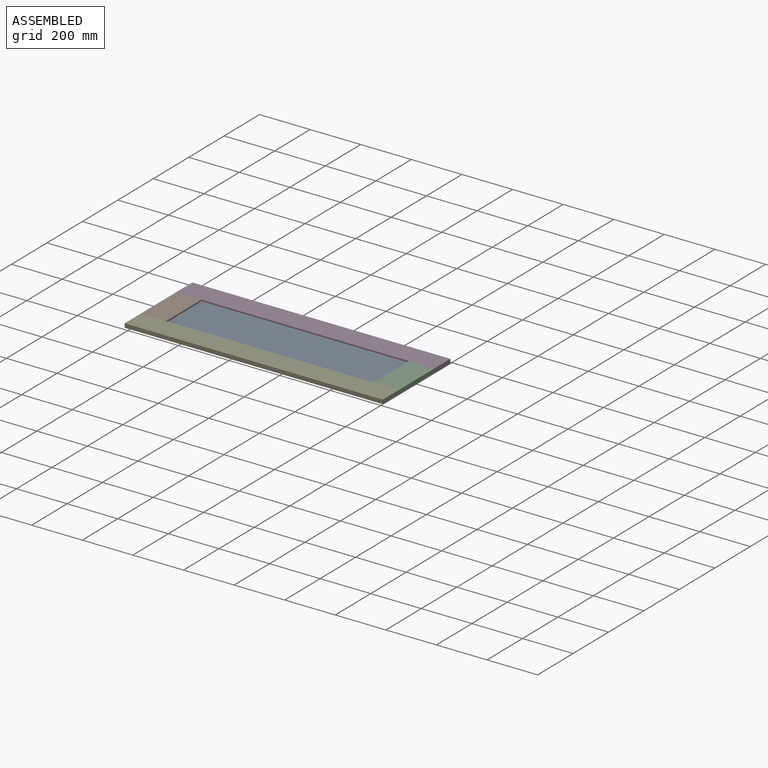
[diagram: assembled view]
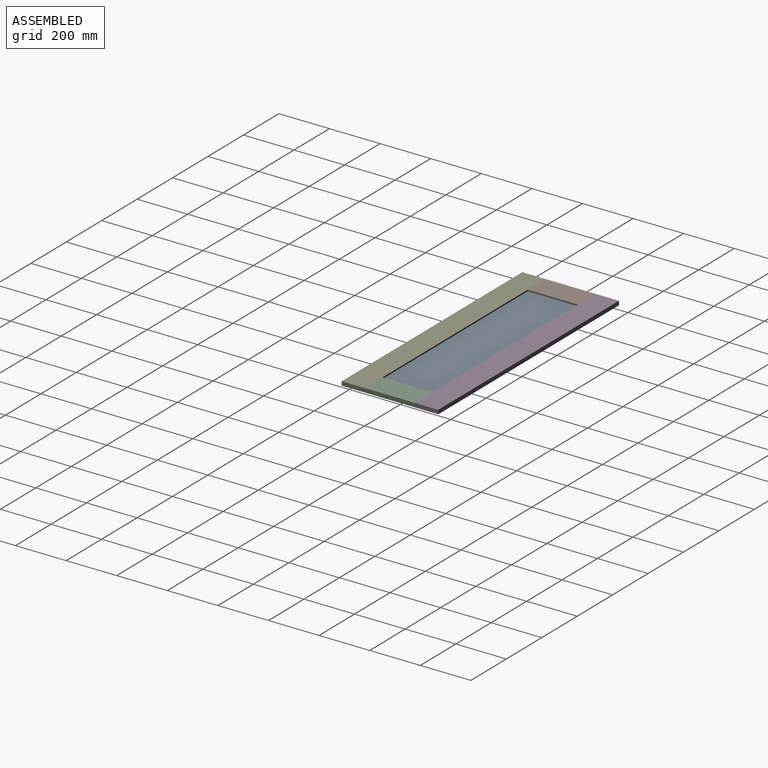
[diagram: assembled view, second angle]
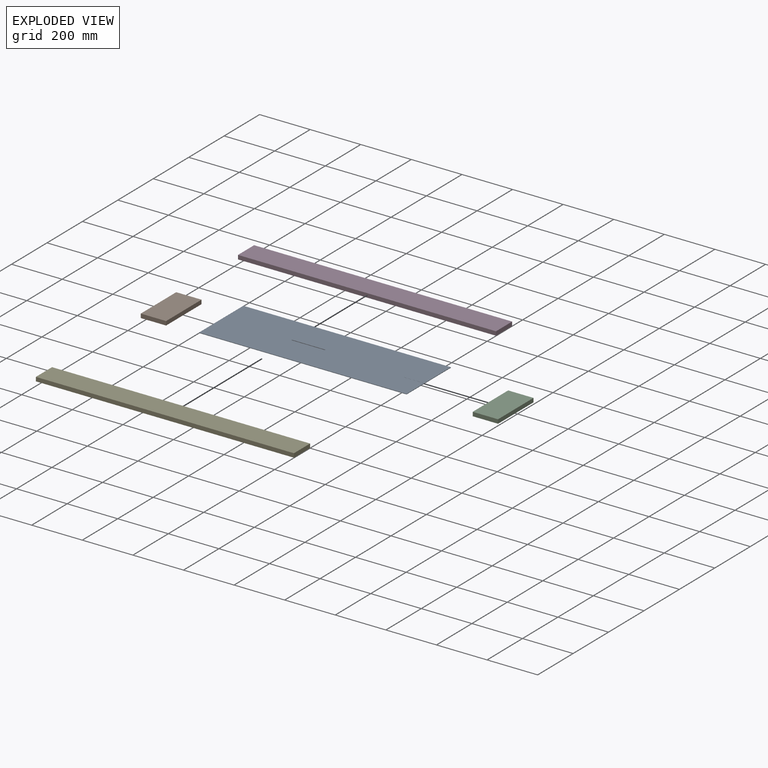
[diagram: exploded view]
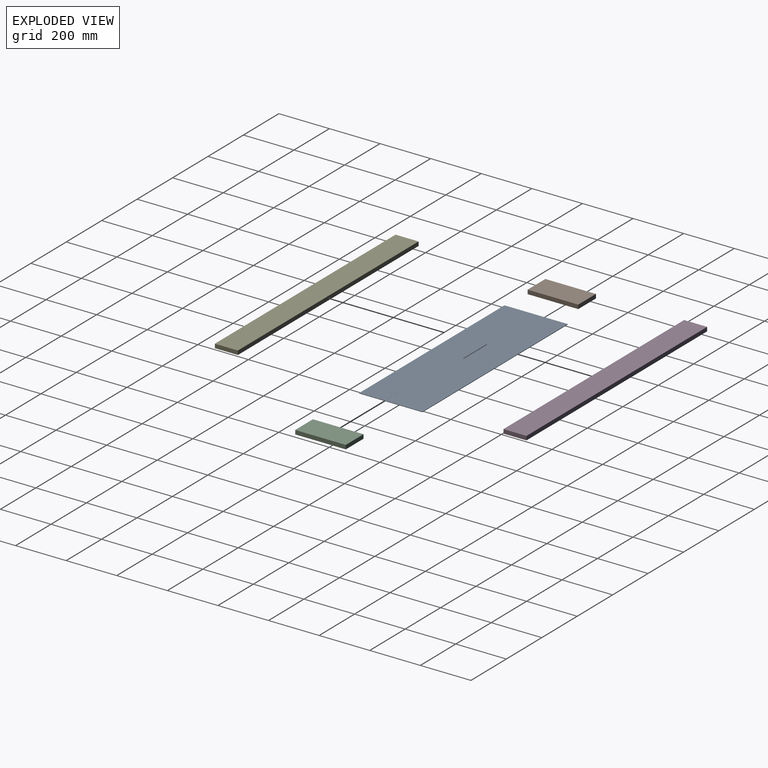
[diagram: exploded view, second angle]
ASSEMBLY  parts=5 mates=4
PART A: 6 faces, bbox 820x250x2 mm
  f0: plane 820x2mm, normal (0,-1,0), area 1640mm2, adj f1,f3,f4,f5
  f1: plane 250x2mm, normal (1,0,0), area 500mm2, adj f0,f2,f4,f5
  f2: plane 820x2mm, normal (0,1,0), area 1640mm2, adj f1,f3,f4,f5
  f3: plane 250x2mm, normal (-1,0,0), area 500mm2, adj f0,f2,f4,f5
  f4: plane 820x250mm, normal (0,0,1), area 205000mm2, adj f0,f1,f2,f3
  f5: plane 820x250mm, normal (0,0,-1), area 205000mm2, adj f0,f1,f2,f3
PART B: 6 faces, bbox 100x200x16 mm
  f0: plane 100x16mm, normal (0,-1,0), area 1600mm2, adj f1,f3,f4,f5
  f1: plane 200x16mm, normal (1,0,0), area 3200mm2, adj f0,f2,f4,f5
  f2: plane 100x16mm, normal (0,1,0), area 1600mm2, adj f1,f3,f4,f5
  f3: plane 200x16mm, normal (-1,0,0), area 3200mm2, adj f0,f2,f4,f5
  f4: plane 200x100mm, normal (0,0,1), area 20000mm2, adj f0,f1,f2,f3
  f5: plane 200x100mm, normal (0,0,-1), area 20000mm2, adj f0,f1,f2,f3
PART C: same geometry as B
PART D: 6 faces, bbox 1020x91x16 mm
  f0: plane 91x16mm, normal (1,0,0), area 1456mm2, adj f1,f3,f4,f5
  f1: plane 1020x16mm, normal (0,1,0), area 16320mm2, adj f0,f2,f4,f5
  f2: plane 91x16mm, normal (-1,0,0), area 1456mm2, adj f1,f3,f4,f5
  f3: plane 1020x16mm, normal (0,-1,0), area 16320mm2, adj f0,f2,f4,f5
  f4: plane 1020x91mm, normal (0,0,1), area 92820mm2, adj f0,f1,f2,f3
  f5: plane 1020x91mm, normal (0,0,-1), area 92820mm2, adj f0,f1,f2,f3
PART E: same geometry as D
PLACE A t=(-90.45,-1.54,107.91)mm
PLACE B t=(-550.45,-26.54,99.91)mm
PLACE C t=(369.55,-26.54,99.91)mm
PLACE D t=(-90.45,118.96,99.91)mm
PLACE E rot(axis=(1,0,0),180deg) t=(-90.45,-172.04,115.91)mm
MATE fastened B.f0 <-> E.f3  axis (0,-1,0) through (-600.45,-126.54,115.91)mm
MATE fastened E.f3 <-> C.f0  axis (0,1,0) through (419.55,-126.54,115.91)mm
MATE fastened D.f3 <-> B.f2  axis (0,-1,0) through (-600.45,73.46,99.91)mm
MATE fastened A.f1 <-> C.f3  axis (1,0,0) through (319.55,-126.54,107.91)mm
